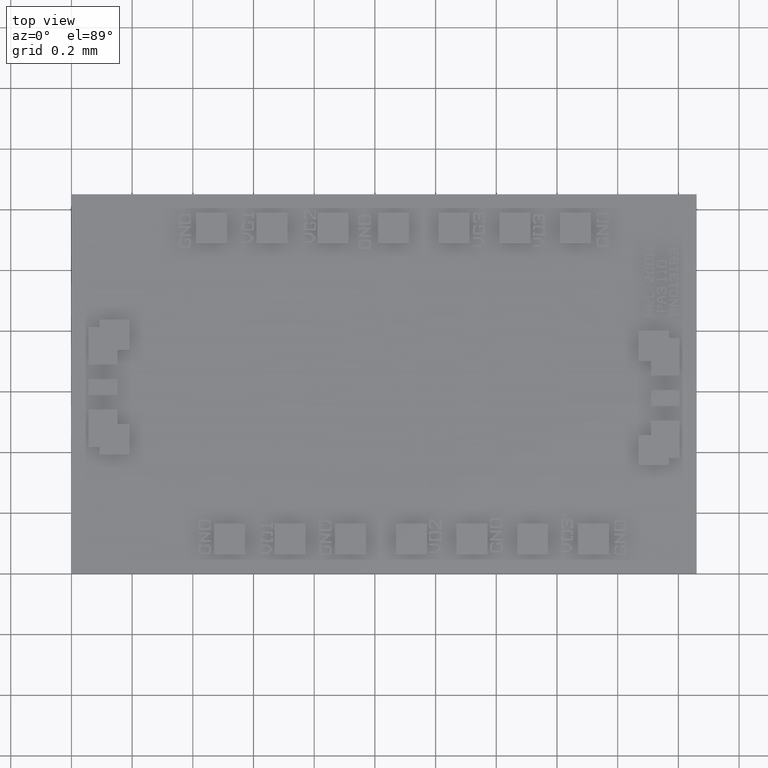
[diagram: clean part render]
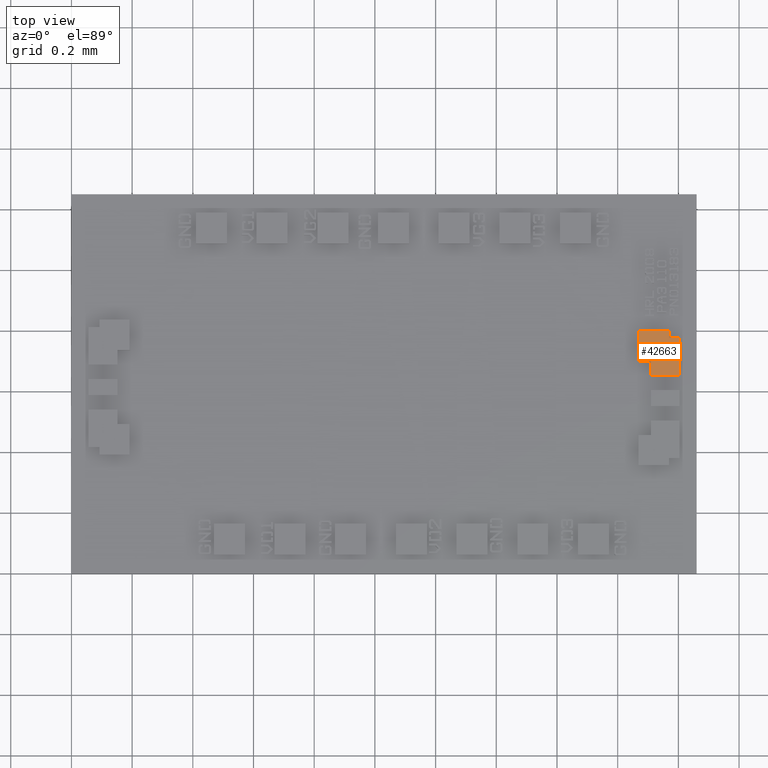
[diagram: same view with one face highlighted and labeled with its STEP entity id]
A machine part, top view. The second image highlights one B-rep face of the part: STEP entity #42663.
In plain terms, the highlighted planar face has unit normal (0, 0, 1).
Its self-contained STEP definition (entity closure, byte-faithful):
#337=CARTESIAN_POINT('',(0.073582677165354,0.031503937007874,0.002047244094488));
#338=VERTEX_POINT('',#337);
#345=CARTESIAN_POINT('',(0.077519685039370,0.031503937007874,0.002047244094488));
#346=VERTEX_POINT('',#345);
#347=CARTESIAN_POINT('',(0.077519685039370,0.031503937007874,0.002047244094488));
#348=DIRECTION('',(-1.0,0.0,0.0));
#349=VECTOR('',#348,0.003937007874016);
#350=LINE('',#347,#349);
#351=EDGE_CURVE('',#346,#338,#350,.T.);
#375=CARTESIAN_POINT('',(0.073582677165354,0.027566929133858,0.002047244094488));
#376=VERTEX_POINT('',#375);
#383=CARTESIAN_POINT('',(0.073582677165354,0.031503937007874,0.002047244094488));
#384=DIRECTION('',(0.0,-1.0,0.0));
#385=VECTOR('',#384,0.003937007874016);
#386=LINE('',#383,#385);
#387=EDGE_CURVE('',#338,#376,#386,.T.);
#406=CARTESIAN_POINT('',(0.075177165354331,0.027566929133858,0.002047244094488));
#407=VERTEX_POINT('',#406);
#414=CARTESIAN_POINT('',(0.073582677165354,0.027566929133858,0.002047244094488));
#415=DIRECTION('',(1.0,0.0,0.0));
#416=VECTOR('',#415,0.001594488188976);
#417=LINE('',#414,#416);
#418=EDGE_CURVE('',#376,#407,#417,.T.);
#437=CARTESIAN_POINT('',(0.075177165354331,0.025677165354331,0.002047244094488));
#438=VERTEX_POINT('',#437);
#445=CARTESIAN_POINT('',(0.075177165354331,0.027566929133858,0.002047244094488));
#446=DIRECTION('',(0.0,-1.0,0.0));
#447=VECTOR('',#446,0.001889763779528);
#448=LINE('',#445,#447);
#449=EDGE_CURVE('',#407,#438,#448,.T.);
#468=CARTESIAN_POINT('',(0.078897637795276,0.025677165354331,0.002047244094488));
#469=VERTEX_POINT('',#468);
#476=CARTESIAN_POINT('',(0.075177165354331,0.025677165354331,0.002047244094488));
#477=DIRECTION('',(1.0,0.0,0.0));
#478=VECTOR('',#477,0.003720472440945);
#479=LINE('',#476,#478);
#480=EDGE_CURVE('',#438,#469,#479,.T.);
#499=CARTESIAN_POINT('',(0.078897637795276,0.030559055118110,0.002047244094488));
#500=VERTEX_POINT('',#499);
#507=CARTESIAN_POINT('',(0.078897637795276,0.025677165354331,0.002047244094488));
#508=DIRECTION('',(0.0,1.0,0.0));
#509=VECTOR('',#508,0.004881889763780);
#510=LINE('',#507,#509);
#511=EDGE_CURVE('',#469,#500,#510,.T.);
#530=CARTESIAN_POINT('',(0.077519685039370,0.030559055118110,0.002047244094488));
#531=VERTEX_POINT('',#530);
#538=CARTESIAN_POINT('',(0.078897637795276,0.030559055118110,0.002047244094488));
#539=DIRECTION('',(-1.0,0.0,0.0));
#540=VECTOR('',#539,0.001377952755906);
#541=LINE('',#538,#540);
#542=EDGE_CURVE('',#500,#531,#541,.T.);
#560=CARTESIAN_POINT('',(0.077519685039370,0.030559055118110,0.002047244094488));
#561=DIRECTION('',(0.0,1.0,0.0));
#562=VECTOR('',#561,0.000944881889764);
#563=LINE('',#560,#562);
#564=EDGE_CURVE('',#531,#346,#563,.T.);
#42648=CARTESIAN_POINT('',(0.040551181102362,0.024606299212598,0.002047244094488));
#42649=DIRECTION('',(0.0,0.0,1.0));
#42650=DIRECTION('',(1.0,0.0,0.0));
#42651=AXIS2_PLACEMENT_3D('',#42648,#42649,#42650);
#42652=PLANE('',#42651);
#42653=ORIENTED_EDGE('',*,*,#351,.T.);
#42654=ORIENTED_EDGE('',*,*,#387,.T.);
#42655=ORIENTED_EDGE('',*,*,#418,.T.);
#42656=ORIENTED_EDGE('',*,*,#449,.T.);
#42657=ORIENTED_EDGE('',*,*,#480,.T.);
#42658=ORIENTED_EDGE('',*,*,#511,.T.);
#42659=ORIENTED_EDGE('',*,*,#542,.T.);
#42660=ORIENTED_EDGE('',*,*,#564,.T.);
#42661=EDGE_LOOP('',(#42653,#42654,#42655,#42656,#42657,#42658,#42659,#42660));
#42662=FACE_OUTER_BOUND('',#42661,.T.);
#42663=ADVANCED_FACE('',(#42662),#42652,.T.);